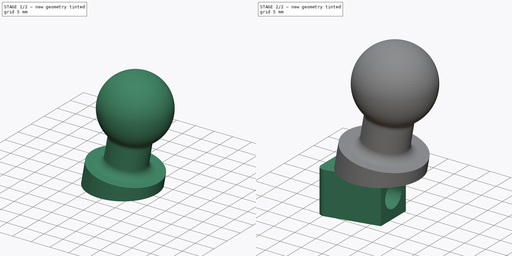
[diagram: build sequence overview — one tinted view per stage of 2, left to right]
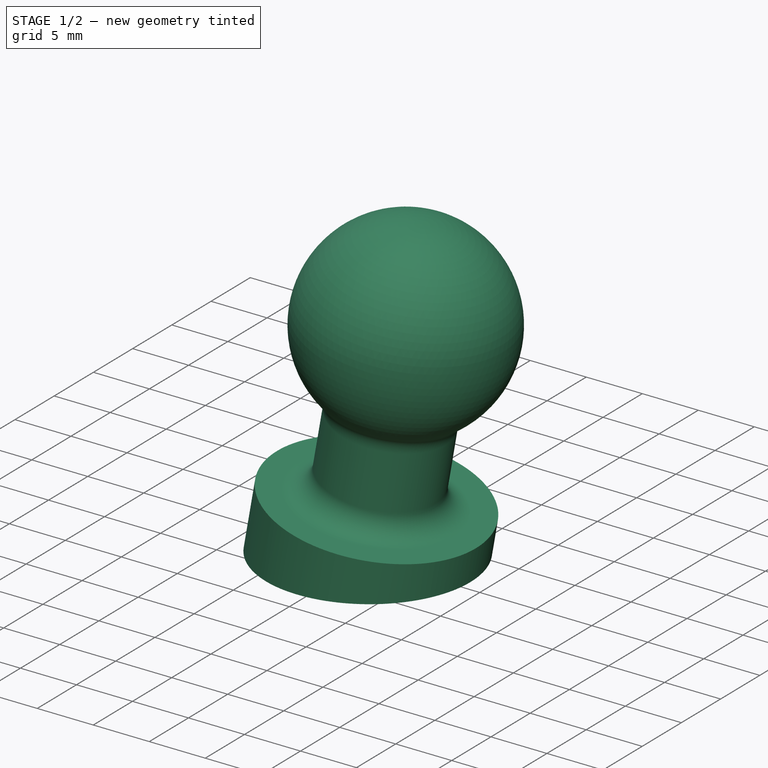
[diagram: stage 1 of 2 — iso view after this stage's code; geometry added in this stage tinted green]
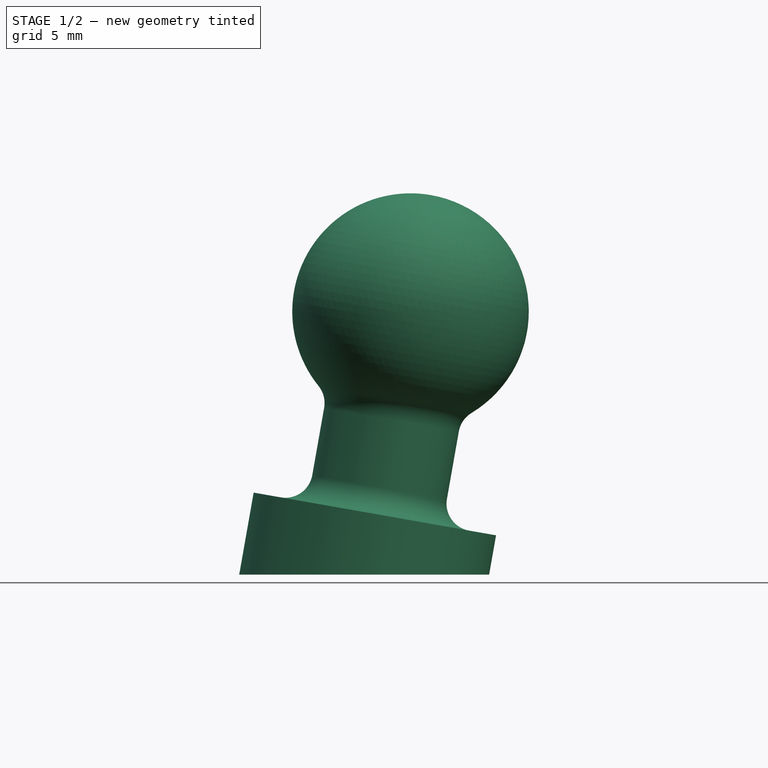
[diagram: stage 1 of 2 — front view after this stage's code; geometry added in this stage tinted green]
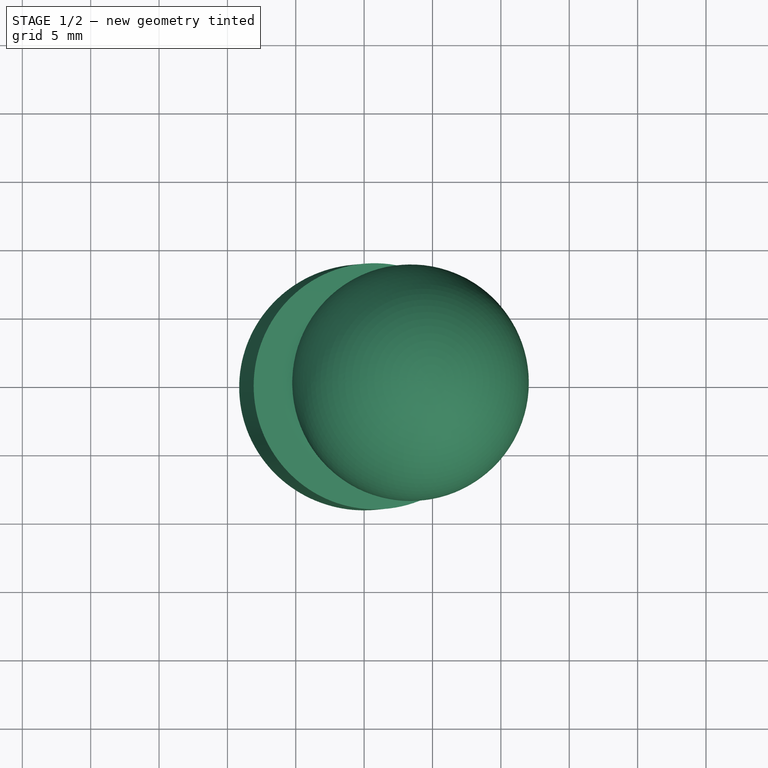
[diagram: stage 1 of 2 — top view after this stage's code; geometry added in this stage tinted green]
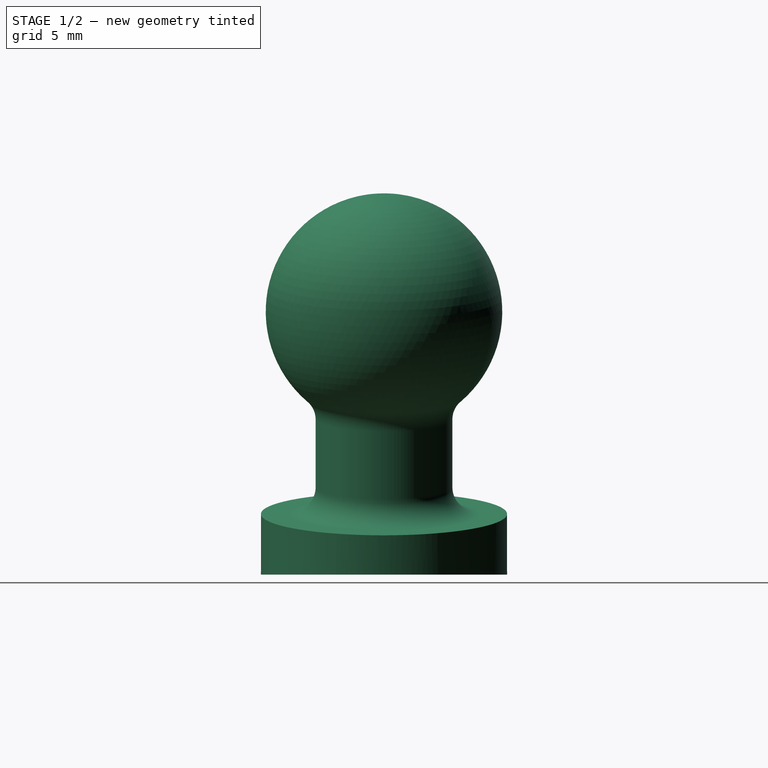
[diagram: stage 1 of 2 — right view after this stage's code; geometry added in this stage tinted green]
FCSTD DOCUMENT  (FreeCAD 1.0R39109 (Git))
Label: zhoulin ball joint 2
License: All rights reserved
objects: Sketcher::SketchObject×4, PartDesign::Revolution×1, PartDesign::Pocket×1, PartDesign::Pad×1, PartDesign::Groove×1, PartDesign::Body×1
note: 21 computed .brp shape members not serialized (recipe doc carries the construction recipe); baked Part::Feature solids carry a one-line shape summary decoded from their .brp

FEATURE [Sketcher::SketchObject] Sketch
  ArcFitTolerance = 1e-06
  AttachmentSupport = -> [XZ_Plane]
  FullyConstrained = true
  MakeInternals = false
  MapMode = 5
  Placement = pos=(0,0,0) rot=(1,0,0;1.5708rad)
  sketch-geometry (9):
    g0: LineSegment StartX=0 StartY=0 StartZ=0 EndX=4.89375 EndY=27.7538 EndZ=0
    g1: LineSegment StartX=-2.92611 StartY=12.1991 StartZ=0 EndX=-3.79435 EndY=7.27502 EndZ=0
    g2: ArcOfCircle CenterX=3.39169 CenterY=19.2352 CenterZ=0 NormalX=0 NormalY=0 NormalZ=1 AngleXU=0 Radius=8.65 StartAngle=1.39626 EndAngle=3.82066
    g3: LineSegment StartX=-9.13884 StartY=0 StartZ=0 EndX=0 EndY=0 EndZ=0
    g4: LineSegment StartX=-9.13884 StartY=0 StartZ=0 EndX=-8.08088 EndY=6 EndZ=0
    g5: LineSegment StartX=-8.08088 StartY=6 StartZ=0 EndX=-6.11126 EndY=5.6527 EndZ=0
    g6: ArcOfCircle CenterX=-5.76397 CenterY=7.62232 CenterZ=0 NormalX=0 NormalY=0 NormalZ=1 AngleXU=0 Radius=2 StartAngle=4.53786 EndAngle=6.10865
    g7: GeomPoint [constr] X=-4.14165 Y=5.30541 Z=0
    g8: ArcOfCircle CenterX=-4.89572 CenterY=12.5464 CenterZ=0 NormalX=0 NormalY=0 NormalZ=1 AngleXU=0 Radius=2 StartAngle=6.10865 EndAngle=6.96225
  constraints (24):
    c: Coincident(g0,g-1)
    c: Parallel(g1,g0)
    c: Angle(g0,g-2) = 0.174533
    c: PointOnObject(g2,g0)
    c: Coincident(g2,g0)
    c: Diameter(g2) = 17.3
    c: PointOnObject(g3,g-1)
    c: Coincident(g3,g0)
    c: Coincident(g5,g4)
    c: Perpendicular(g1,g5)
    c: Perpendicular(g5,g4)
    c: PointOnObject(g7,g5)
    c: PointOnObject(g7,g1)
    c: Tangent(g5,g6) = -1.5708
    c: Tangent(g1,g6) = 1.5708
    c: Radius(g6) = 2
    c: Coincident(g3,g4)
    c: Distance(g5,g5) = 2
    c: Tangent(g2,g8) = 1.5708
    c: Tangent(g1,g8) = 1.5708
    c: Radius(g8) = 2
    c: Distance(g1,g0) = 5
    c: Distance(g1,g1) = 5
    c: DistanceY(g4,g4) = 6
FEATURE [PartDesign::Revolution] Revolution
  Angle = 360
  Angle2 = 60
  Axis = (0.173648,2e-16,0.984808)
  Base = (0,0,0)
  Placement = pos=(0,0,0) rot=(1,0,0;1.5708rad)
  Profile = -> Sketch
  ReferenceAxis = -> Sketch [Edge2]
  Reversed = true
  Suppressed = false
  Type = 0
FEATURE [Sketcher::SketchObject] Sketch009
  ArcFitTolerance = 1e-06
  AttachmentSupport = -> [XY_Plane]
  FullyConstrained = true
  MakeInternals = false
  MapMode = 5
  sketch-geometry (8):
    g0: LineSegment StartX=-10.5 StartY=5.38008 StartZ=0 EndX=-10.5 EndY=-5.38008 EndZ=0
    g1: LineSegment StartX=-8.6746 StartY=-6.84436 StartZ=0 EndX=3 EndY=-4.25 EndZ=0
    g2: LineSegment StartX=3 StartY=-4.25 StartZ=0 EndX=3 EndY=4.25 EndZ=0
    g3: LineSegment StartX=3 StartY=4.25 StartZ=0 EndX=-8.6746 EndY=6.84436 EndZ=0
    g4: ArcOfCircle CenterX=-9 CenterY=5.38008 CenterZ=0 NormalX=0 NormalY=0 NormalZ=1 AngleXU=0 Radius=1.5 StartAngle=1.35213 EndAngle=3.14159
    g5: GeomPoint [constr] X=-10.5 Y=7.25 Z=0
    g6: ArcOfCircle CenterX=-9 CenterY=-5.38008 CenterZ=0 NormalX=0 NormalY=0 NormalZ=1 AngleXU=0 Radius=1.5 StartAngle=3.14159 EndAngle=4.93106
    g7: GeomPoint [constr] X=-10.5 Y=-7.25 Z=0
  constraints (18):
    c: Coincident(g1,g2)
    c: Coincident(g2,g3)
    c: DistanceY(g7,g5) = 14.5
    c: DistanceY(g2,g2) = 8.5
    c: Symmetric(g5,g7,g-1)
    c: Symmetric(g2,g1,g-1)
    c: PointOnObject(g5,g3)
    c: PointOnObject(g5,g0)
    c: Tangent(g3,g4) = -1.5708
    c: Tangent(g0,g4) = -1.5708
    c: PointOnObject(g7,g0)
    c: PointOnObject(g7,g1)
    c: Tangent(g0,g6) = -1.5708
    c: Tangent(g1,g6) = -1.5708
    c: Equal(g4,g6)
    c: Radius(g4) = 1.5
    c: Distance(g2,g0) = 13.5
    c: Distance(g-2,g2) = 3
FEATURE [Sketcher::SketchObject] Sketch010
  ArcFitTolerance = 1e-06
  AttachmentSupport = -> [YZ_Plane]
  FullyConstrained = true
  MakeInternals = false
  MapMode = 5
  Placement = pos=(0,0,0) rot=(0.57735,0.57735,0.57735;2.0944rad)
  sketch-geometry (4):
    g0: LineSegment StartX=-25 StartY=0 StartZ=0 EndX=-25 EndY=-20 EndZ=0
    g1: LineSegment StartX=-25 StartY=-20 StartZ=0 EndX=25 EndY=-20 EndZ=0
    g2: LineSegment StartX=25 StartY=-20 StartZ=0 EndX=25 EndY=0 EndZ=0
    g3: LineSegment StartX=25 StartY=0 StartZ=0 EndX=-25 EndY=0 EndZ=0
  constraints (11):
    c: Coincident(g0,g1)
    c: Coincident(g1,g2)
    c: Coincident(g2,g3)
    c: Coincident(g3,g0)
    c: Vertical(g0)
    c: Vertical(g2)
    c: Horizontal(g3)
    c: PointOnObject(g0,g-1)
    c: Symmetric(g1,g0,g-2)
    c: DistanceY(g2,g2) = 20
    c: DistanceX(g1,g1) = 50
FEATURE [PartDesign::Pocket] Pocket
  BaseFeature = -> Revolution
  Direction = (-1,0,0)
  Length = 5
  Length2 = 5
  Midplane = true
  Placement = pos=(0,0,0) rot=(1,0,0;1.5708rad)
  Profile = -> Sketch010
  ReferenceAxis = -> Sketch010 [N_Axis]
  Suppressed = false
  Type = 1
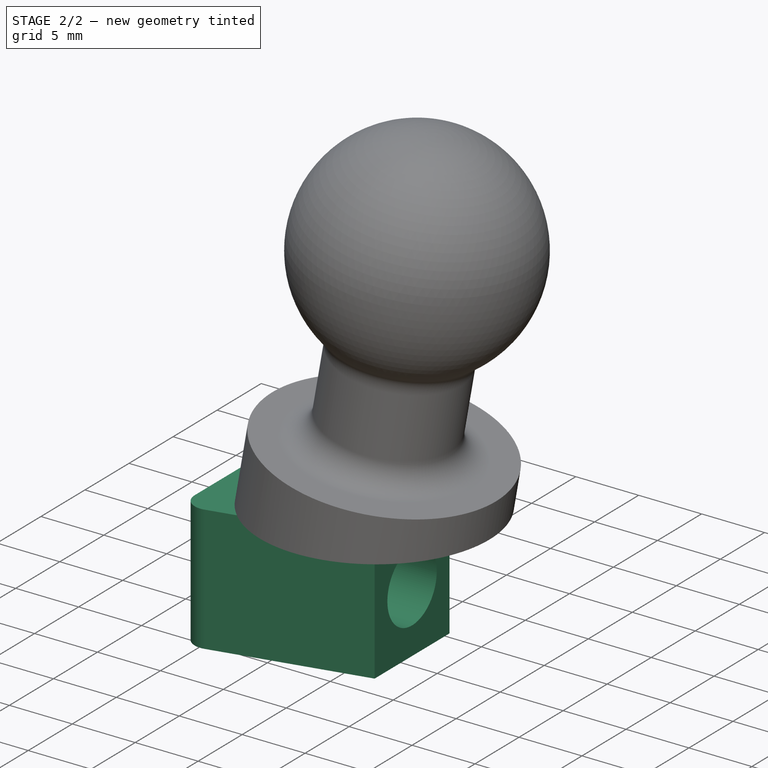
[diagram: stage 2 of 2 — iso view after this stage's code; geometry added in this stage tinted green]
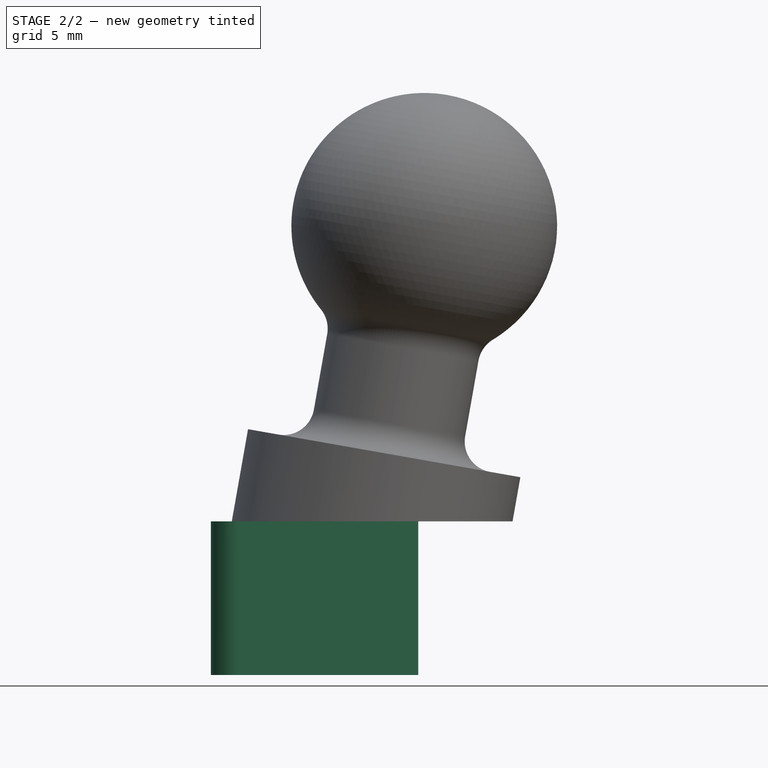
[diagram: stage 2 of 2 — front view after this stage's code; geometry added in this stage tinted green]
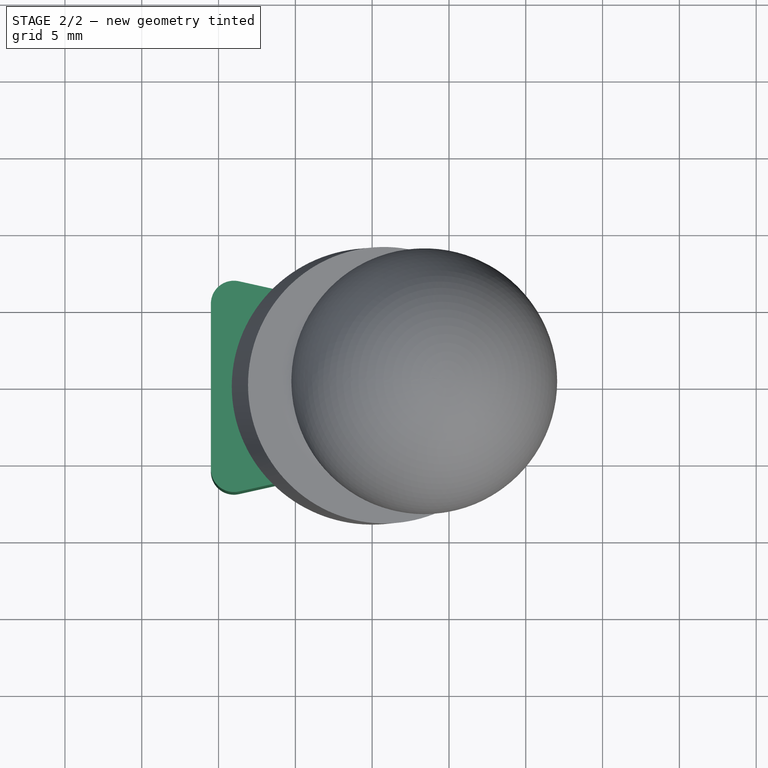
[diagram: stage 2 of 2 — top view after this stage's code; geometry added in this stage tinted green]
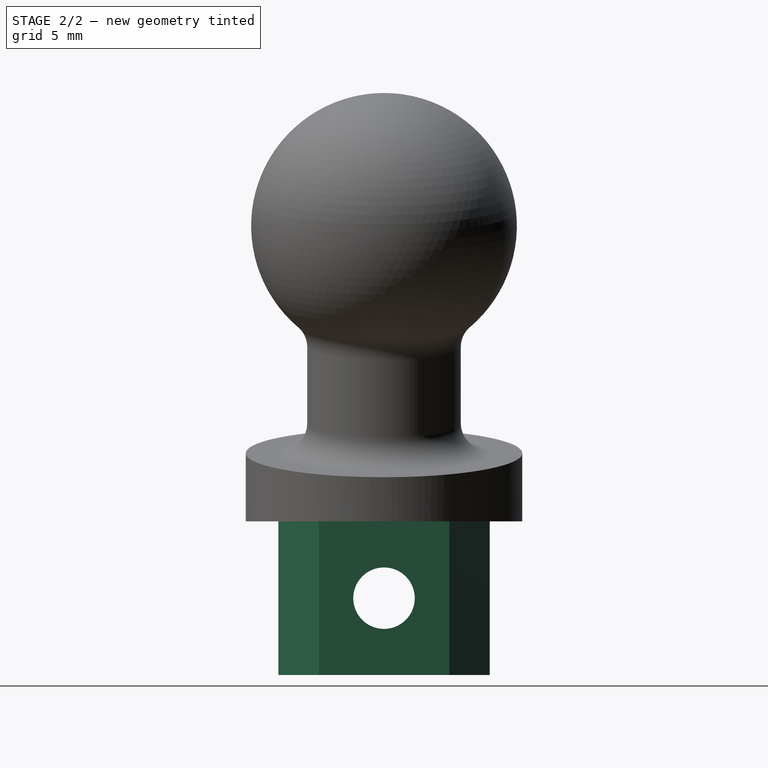
[diagram: stage 2 of 2 — right view after this stage's code; geometry added in this stage tinted green]
FEATURE [PartDesign::Pad] Pad
  BaseFeature = -> Pocket
  Direction = (0,0,1)
  Length = 10
  Length2 = 10
  Placement = pos=(0,0,0) rot=(1,0,0;1.5708rad)
  Profile = -> Sketch009
  ReferenceAxis = -> Sketch009 [N_Axis]
  Reversed = true
  Suppressed = false
  Type = 0
FEATURE [Sketcher::SketchObject] Sketch011
  ArcFitTolerance = 1e-06
  AttachmentSupport = -> [XZ_Plane]
  ExternalGeometry = -> [Sketch009]
  FullyConstrained = true
  MakeInternals = false
  MapMode = 5
  Placement = pos=(0,0,0) rot=(1,0,0;1.5708rad)
  sketch-geometry (6):
    g0: LineSegment StartX=-10.5 StartY=-3 StartZ=0 EndX=-7 EndY=-3 EndZ=0
    g1: LineSegment StartX=-7 StartY=-3 StartZ=0 EndX=-7 EndY=-2.2 EndZ=0
    g2: LineSegment StartX=-7 StartY=-2.2 StartZ=0 EndX=3 EndY=-2.2 EndZ=0
    g3: LineSegment StartX=3 StartY=-2.2 StartZ=0 EndX=3 EndY=-5 EndZ=0
    g4: LineSegment StartX=3 StartY=-5 StartZ=0 EndX=-10.5 EndY=-5 EndZ=0
    g5: LineSegment StartX=-10.5 StartY=-5 StartZ=0 EndX=-10.5 EndY=-3 EndZ=0
  constraints (18):
    c: Horizontal(g0)
    c: Coincident(g0,g1)
    c: Vertical(g1)
    c: Coincident(g1,g2)
    c: Horizontal(g2)
    c: Coincident(g2,g3)
    c: Vertical(g3)
    c: Coincident(g3,g4)
    c: Horizontal(g4)
    c: Coincident(g4,g5)
    c: Coincident(g5,g0)
    c: Vertical(g5)
    c: DistanceY(g5,g5) = 2
    c: DistanceX(g2,g2) = 10
    c: PointOnObject(g-4,g5)
    c: PointOnObject(g-3,g3)
    c: Distance(g3,g3) = 2.8
    c: Distance(g3,g-1) = 5
FEATURE [PartDesign::Groove] Groove
  Angle = 360
  Angle2 = 60
  Axis = (-1,0,0)
  Base = (3,-1.1e-15,-5)
  BaseFeature = -> Pad
  Placement = pos=(0,0,0) rot=(1,0,0;1.5708rad)
  Profile = -> Sketch011
  ReferenceAxis = -> Sketch011 [Edge5]
  Reversed = true
  Suppressed = false
  Type = 0
FEATURE [PartDesign::Body] Body
  AllowCompound = true
  Group = -> [Sketch,Revolution,Sketch010,Pocket,Sketch009,Pad,Sketch011,Groove]
  Origin = -> Origin
  Tip = -> Groove
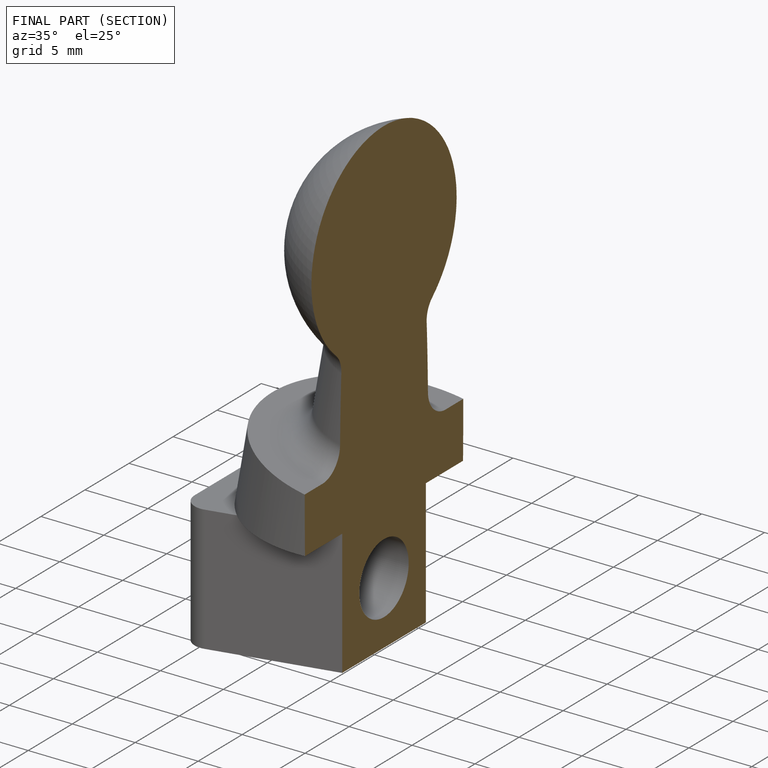
[diagram: finished part — half-section view (interior)]
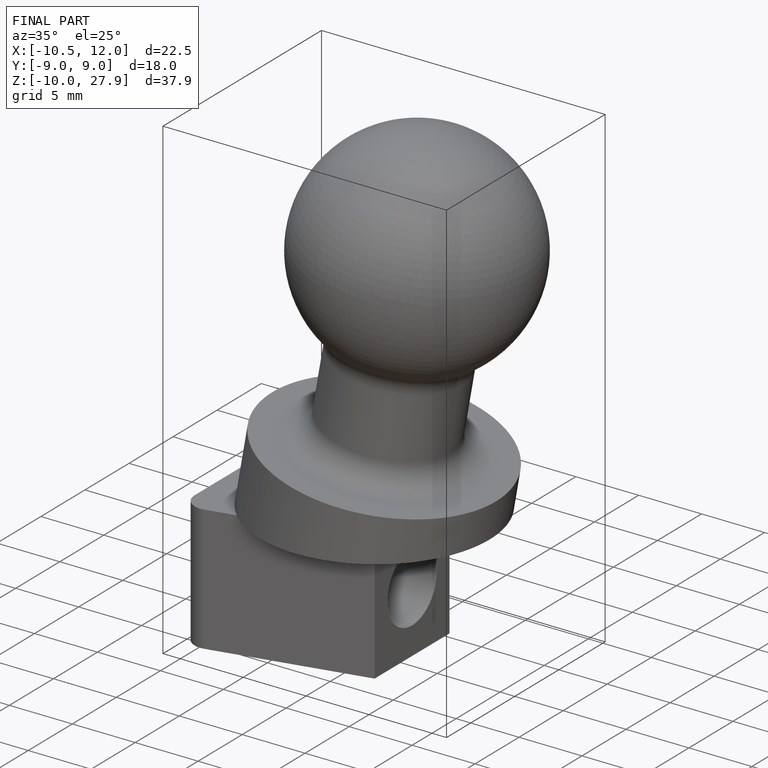
[diagram: finished part — iso view with bounding-box wireframe]
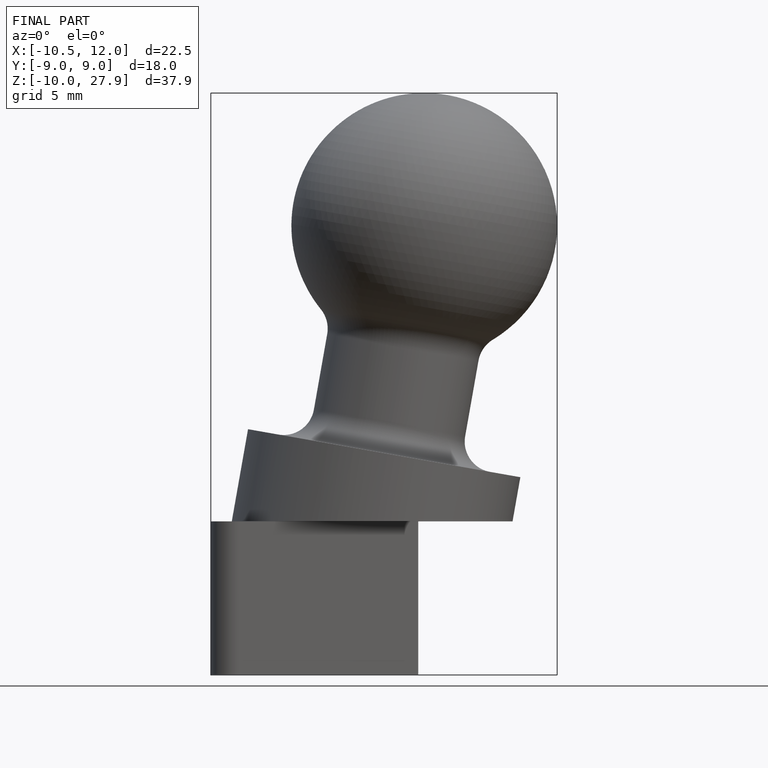
[diagram: finished part — front view with bounding-box wireframe]
